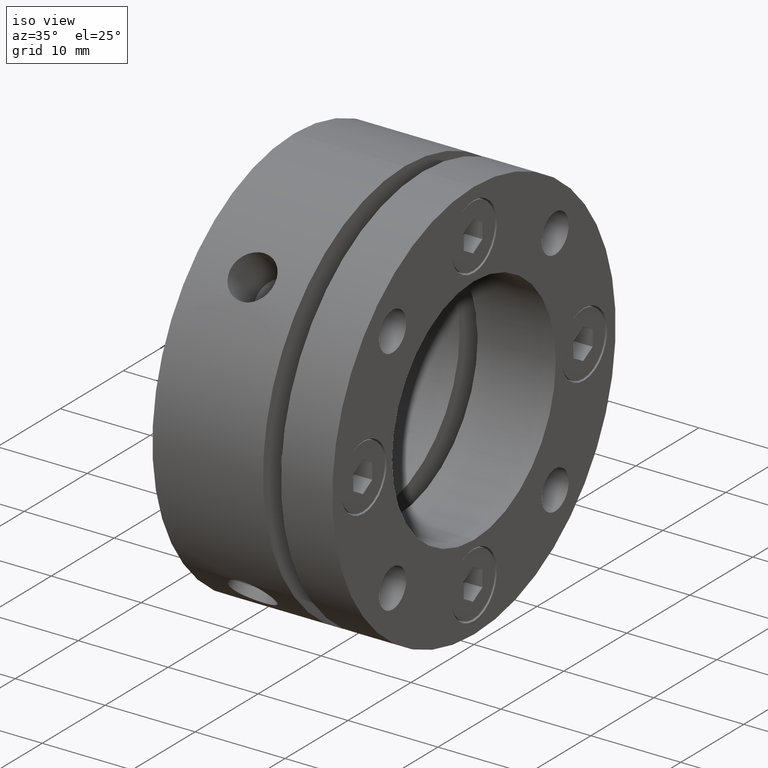
[diagram: clean part render]
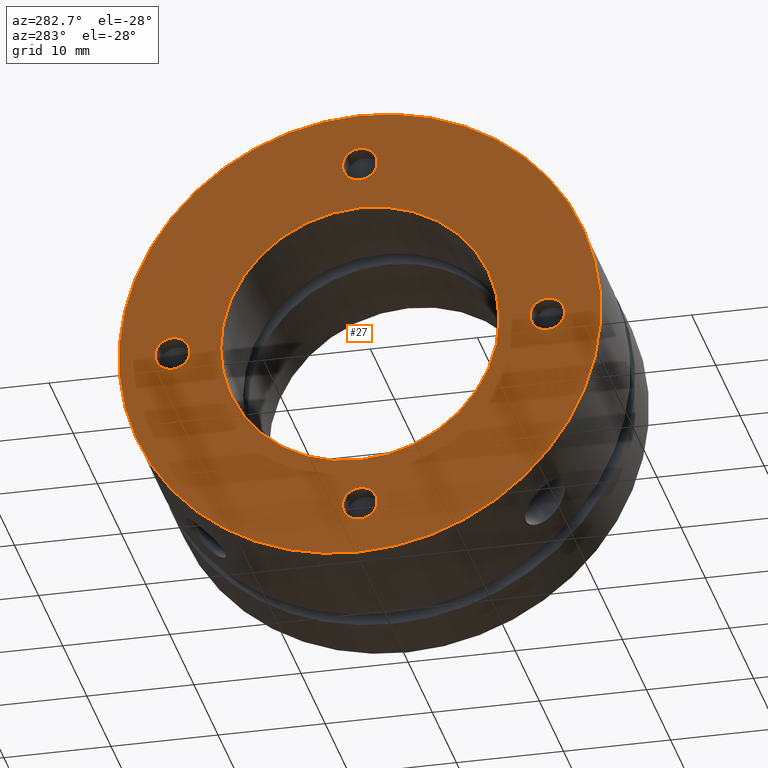
[diagram: tour spotlight — one face highlighted and labeled with its STEP entity id]
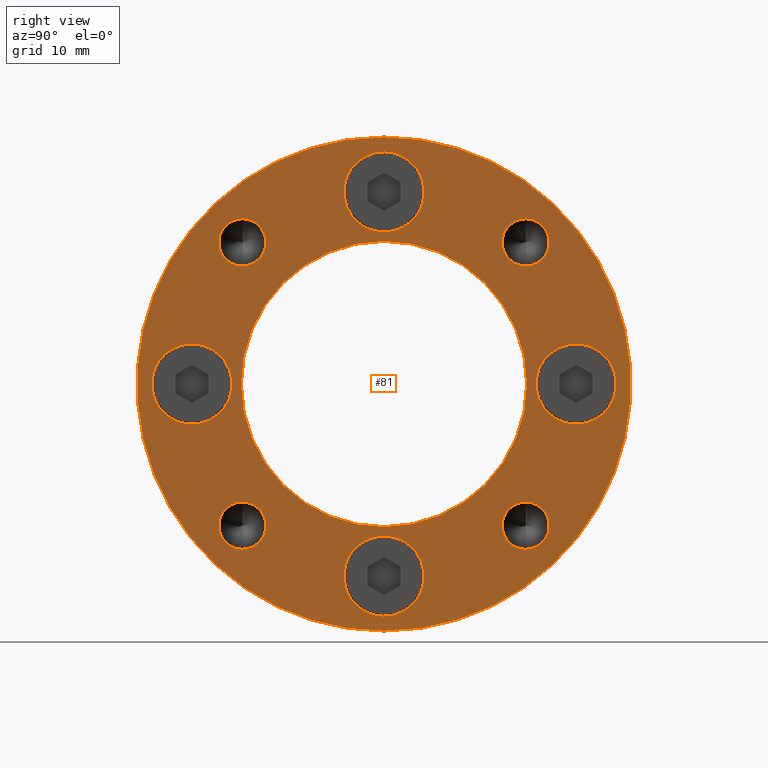
[diagram: tour spotlight — one face highlighted and labeled with its STEP entity id]
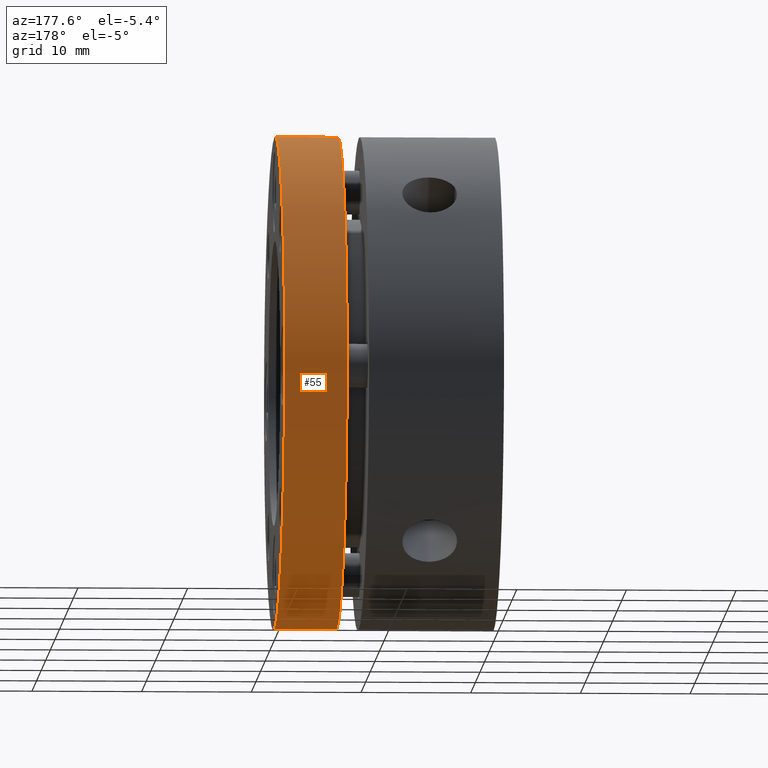
[diagram: tour spotlight — one face highlighted and labeled with its STEP entity id]
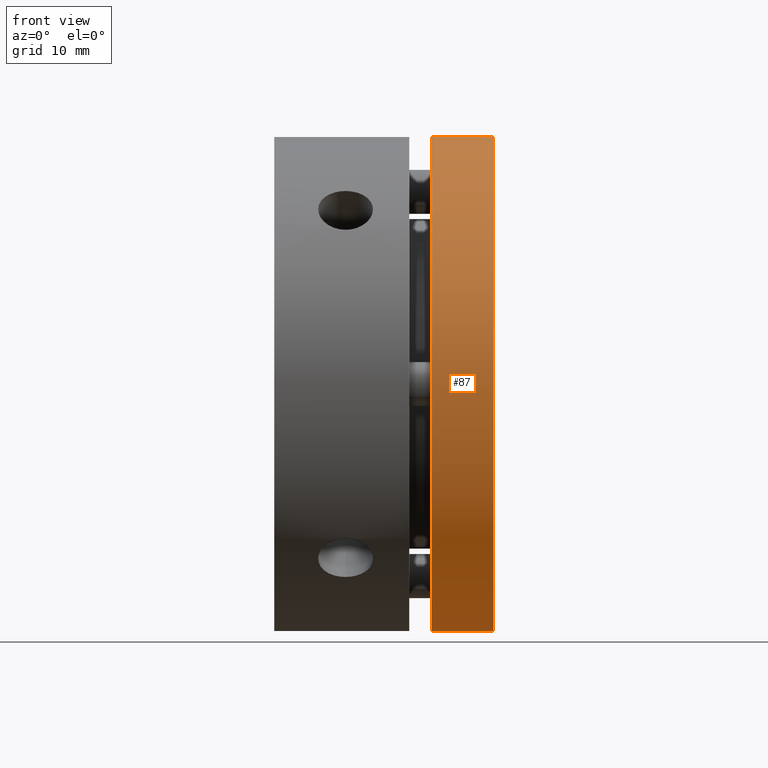
[diagram: tour spotlight — one face highlighted and labeled with its STEP entity id]
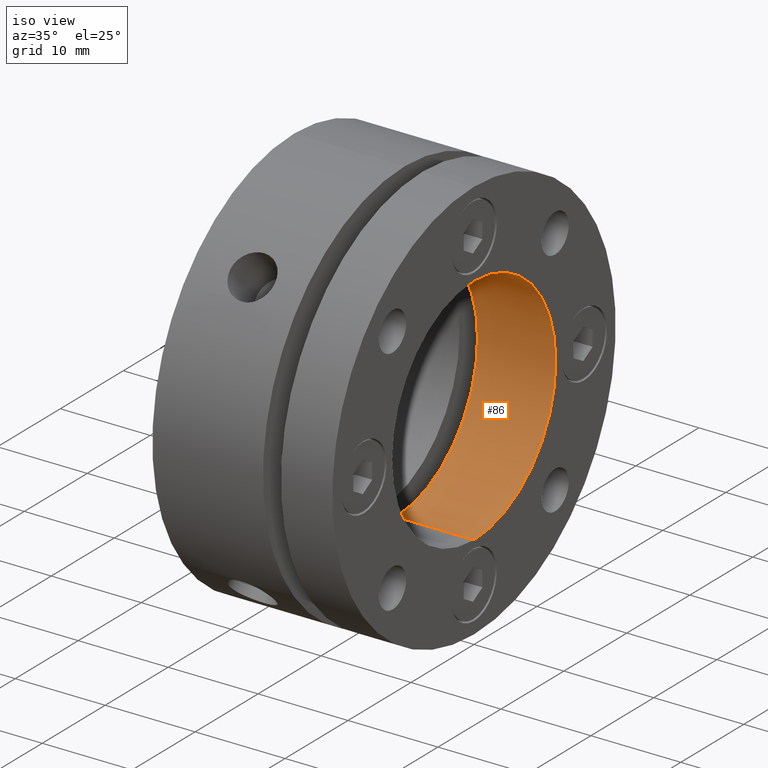
[diagram: tour spotlight — one face highlighted and labeled with its STEP entity id]
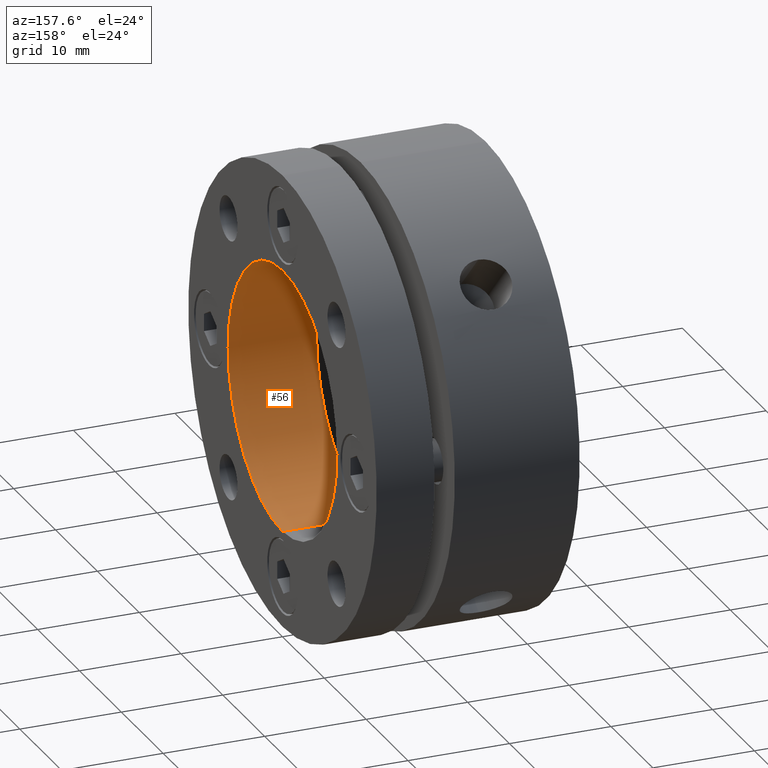
[diagram: tour spotlight — one face highlighted and labeled with its STEP entity id]
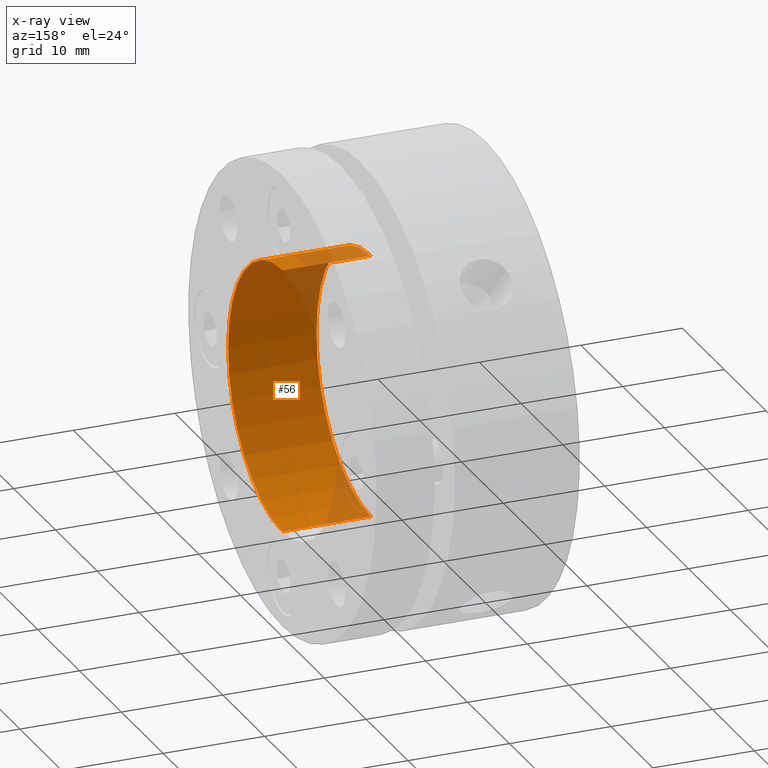
[diagram: x-ray of the same camera — body ghosted, this tour face saturated]
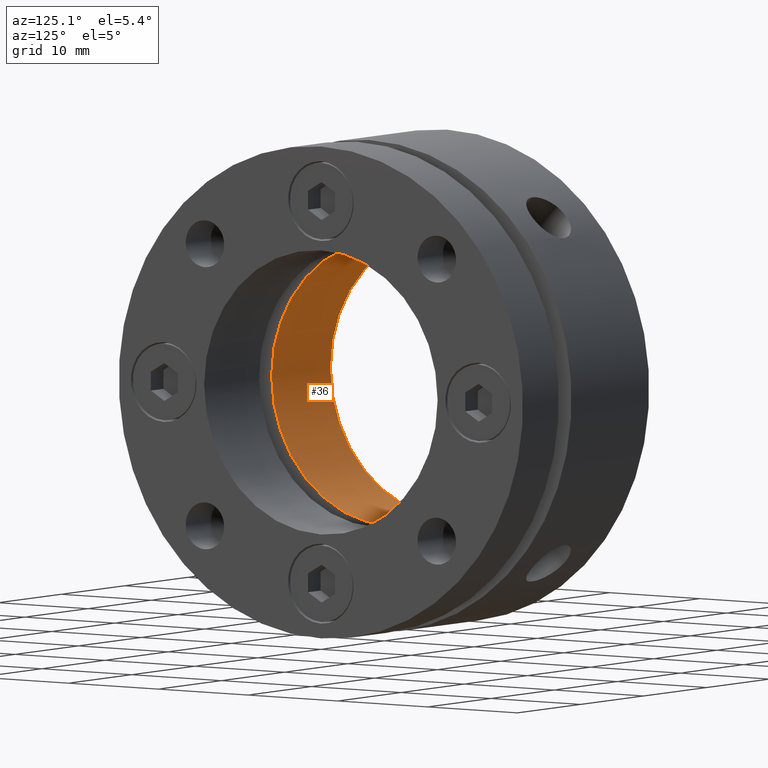
[diagram: tour spotlight — one face highlighted and labeled with its STEP entity id]
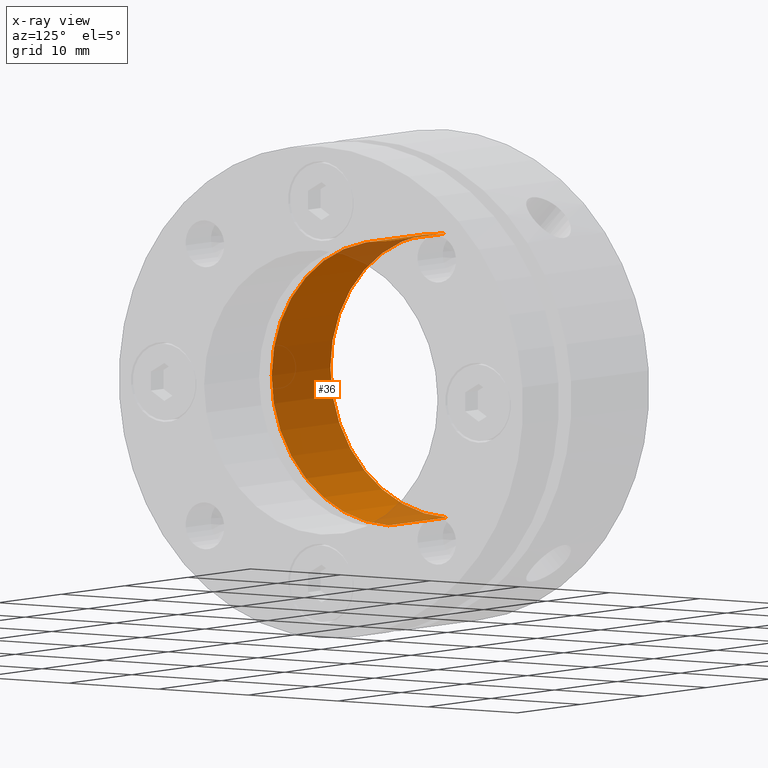
[diagram: x-ray of the same camera — body ghosted, this tour face saturated]
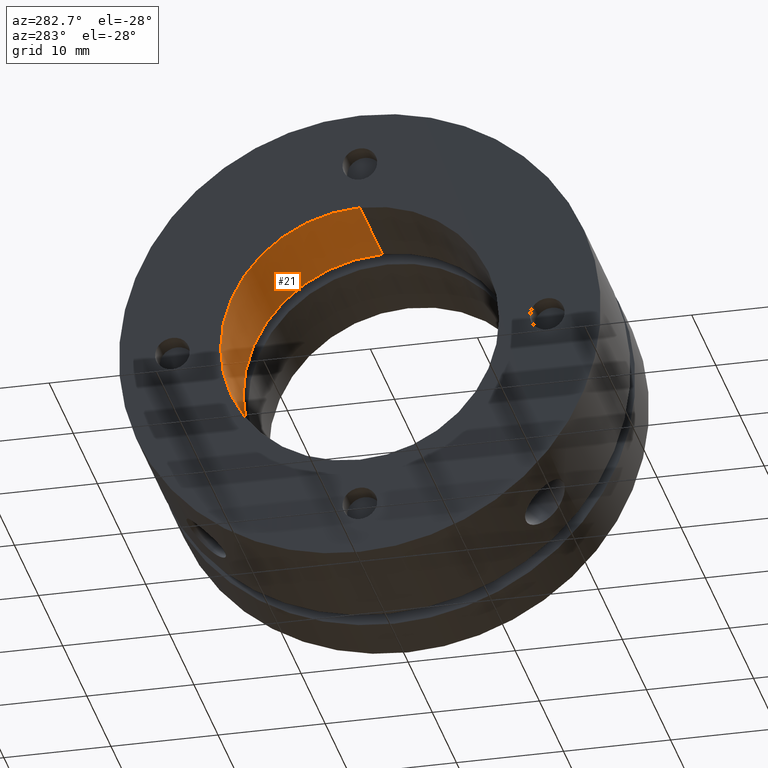
[diagram: tour spotlight — one face highlighted and labeled with its STEP entity id]
A machine part: a face-by-face anatomy tour. The part has 142 B-rep faces; the first image is the clean iso view, then the 8 largest visible faces are spotlighted one at a time (largest first), each with its STEP entity span.

Face 1 — auxiliary view, entity #27. In plain terms, the highlighted planar face has unit normal (-1, 0, 0).
Definition (entity closure, byte-faithful):
#27 = ADVANCED_FACE ( 'NONE', ( #2372, #2380, #2376, #2374, #2378, #2381 ), #189, .T. ) ;
#187 = DIRECTION ( 'NONE',  ( -1.000000000000000000, 0.0000000000000000000, 0.0000000000000000000 ) ) ;
#189 = PLANE ( 'NONE',  #915 ) ;
#190 = CARTESIAN_POINT ( 'NONE',  ( -3.763670999999999700E-015, 17.75000000000000400, 0.0000000000000000000 ) ) ;
#191 = DIRECTION ( 'NONE',  ( 0.0000000000000000000, 0.0000000000000000000, 1.000000000000000000 ) ) ;
#463 = CARTESIAN_POINT ( 'NONE',  ( -3.469446951953614200E-015, 0.0000000000000000000, 19.12100000000000600 ) ) ;
#467 = CARTESIAN_POINT ( 'NONE',  ( -3.469446951953614200E-015, 1.985152461417858200E-016, 15.87900000000000500 ) ) ;
#471 = CARTESIAN_POINT ( 'NONE',  ( -3.469446951953614200E-015, 1.592040838891559300E-015, 13.00000000000000200 ) ) ;
#475 = CARTESIAN_POINT ( 'NONE',  ( -3.469446951953614200E-015, 0.0000000000000000000, -13.00000000000000200 ) ) ;
#492 = CARTESIAN_POINT ( 'NONE',  ( -5.204170427930421300E-015, 0.0000000000000000000, -22.50000000000000000 ) ) ;
#494 = CARTESIAN_POINT ( 'NONE',  ( -5.204170427930421300E-015, 2.755455298081544800E-015, 22.50000000000000000 ) ) ;
#509 = CARTESIAN_POINT ( 'NONE',  ( -3.469446951953614200E-015, -17.50000000000000400, 1.621000000000001100 ) ) ;
#513 = CARTESIAN_POINT ( 'NONE',  ( -3.469446951953614200E-015, -2.143131999999999800E-015, -15.87900000000000500 ) ) ;
#517 = CARTESIAN_POINT ( 'NONE',  ( -3.469446951953614200E-015, -1.944616753858214000E-015, -19.12100000000000600 ) ) ;
#520 = CARTESIAN_POINT ( 'NONE',  ( -3.469446951953614200E-015, -17.50000000000000400, -1.620999999999998900 ) ) ;
#523 = CARTESIAN_POINT ( 'NONE',  ( -3.469446951953614200E-015, 17.50000000000000400, -1.621000000000003300 ) ) ;
#525 = CARTESIAN_POINT ( 'NONE',  ( -3.469446951953614200E-015, 17.50000000000000400, 1.620999999999996900 ) ) ;
#915 = AXIS2_PLACEMENT_3D ( 'NONE', #190, #187, #191 ) ;
#1011 = AXIS2_PLACEMENT_3D ( 'NONE', #1031, #1032, #1033 ) ;
#1014 = AXIS2_PLACEMENT_3D ( 'NONE', #1041, #1042, #1043 ) ;
#1031 = CARTESIAN_POINT ( 'NONE',  ( -3.469446951953614200E-015, 17.50000000000000400, -3.214698000000000300E-015 ) ) ;
#1032 = DIRECTION ( 'NONE',  ( 1.000000000000000000, -0.0000000000000000000, -0.0000000000000000000 ) ) ;
#1033 = DIRECTION ( 'NONE',  ( 0.0000000000000000000, 0.0000000000000000000, 1.000000000000000000 ) ) ;
#1041 = CARTESIAN_POINT ( 'NONE',  ( -3.469446951953614200E-015, -2.143131999999999800E-015, -17.50000000000000400 ) ) ;
#1042 = DIRECTION ( 'NONE',  ( 1.000000000000000000, -0.0000000000000000000, -0.0000000000000000000 ) ) ;
#1043 = DIRECTION ( 'NONE',  ( 0.0000000000000000000, 0.0000000000000000000, 1.000000000000000000 ) ) ;
#1137 = CARTESIAN_POINT ( 'NONE',  ( -3.469446951953614200E-015, 0.0000000000000000000, 0.0000000000000000000 ) ) ;
#1138 = DIRECTION ( 'NONE',  ( 1.000000000000000000, 0.0000000000000000000, 0.0000000000000000000 ) ) ;
#1139 = DIRECTION ( 'NONE',  ( 0.0000000000000000000, 0.0000000000000000000, -1.000000000000000000 ) ) ;
#1175 = CARTESIAN_POINT ( 'NONE',  ( -3.469446951953614200E-015, -2.143131999999999800E-015, -17.50000000000000400 ) ) ;
#1176 = DIRECTION ( 'NONE',  ( 1.000000000000000000, -0.0000000000000000000, -0.0000000000000000000 ) ) ;
#1177 = DIRECTION ( 'NONE',  ( 0.0000000000000000000, 0.0000000000000000000, 1.000000000000000000 ) ) ;
#1189 = CARTESIAN_POINT ( 'NONE',  ( -3.469446951953614200E-015, -17.50000000000000400, 1.071565999999999900E-015 ) ) ;
#1190 = DIRECTION ( 'NONE',  ( 1.000000000000000000, -0.0000000000000000000, -0.0000000000000000000 ) ) ;
#1191 = DIRECTION ( 'NONE',  ( 0.0000000000000000000, 0.0000000000000000000, 1.000000000000000000 ) ) ;
#1199 = CARTESIAN_POINT ( 'NONE',  ( -3.469446951953614200E-015, 0.0000000000000000000, 17.50000000000000400 ) ) ;
#1200 = DIRECTION ( 'NONE',  ( 1.000000000000000000, -0.0000000000000000000, -0.0000000000000000000 ) ) ;
#1201 = DIRECTION ( 'NONE',  ( 0.0000000000000000000, 0.0000000000000000000, 1.000000000000000000 ) ) ;
#1399 = CARTESIAN_POINT ( 'NONE',  ( -5.204170427930421300E-015, 0.0000000000000000000, 0.0000000000000000000 ) ) ;
#1400 = DIRECTION ( 'NONE',  ( 1.000000000000000000, 0.0000000000000000000, 0.0000000000000000000 ) ) ;
#1401 = DIRECTION ( 'NONE',  ( 0.0000000000000000000, 0.0000000000000000000, -1.000000000000000000 ) ) ;
#1485 = CARTESIAN_POINT ( 'NONE',  ( -3.469446951953614200E-015, -17.50000000000000400, 1.071565999999999900E-015 ) ) ;
#1486 = DIRECTION ( 'NONE',  ( 1.000000000000000000, -0.0000000000000000000, -0.0000000000000000000 ) ) ;
#1487 = DIRECTION ( 'NONE',  ( 0.0000000000000000000, 0.0000000000000000000, 1.000000000000000000 ) ) ;
#1488 = CARTESIAN_POINT ( 'NONE',  ( -3.469446951953614200E-015, 0.0000000000000000000, 17.50000000000000400 ) ) ;
#1489 = DIRECTION ( 'NONE',  ( 1.000000000000000000, -0.0000000000000000000, -0.0000000000000000000 ) ) ;
#1490 = DIRECTION ( 'NONE',  ( 0.0000000000000000000, 0.0000000000000000000, 1.000000000000000000 ) ) ;
#1492 = CARTESIAN_POINT ( 'NONE',  ( -3.469446951953614200E-015, 0.0000000000000000000, 0.0000000000000000000 ) ) ;
#1493 = DIRECTION ( 'NONE',  ( 1.000000000000000000, 0.0000000000000000000, 0.0000000000000000000 ) ) ;
#1494 = DIRECTION ( 'NONE',  ( 0.0000000000000000000, 0.0000000000000000000, -1.000000000000000000 ) ) ;
#1568 = CARTESIAN_POINT ( 'NONE',  ( -5.204170427930421300E-015, 0.0000000000000000000, 0.0000000000000000000 ) ) ;
#1569 = DIRECTION ( 'NONE',  ( 1.000000000000000000, 0.0000000000000000000, 0.0000000000000000000 ) ) ;
#1570 = DIRECTION ( 'NONE',  ( 0.0000000000000000000, 0.0000000000000000000, -1.000000000000000000 ) ) ;
#1725 = CARTESIAN_POINT ( 'NONE',  ( -3.469446951953614200E-015, 17.50000000000000400, -3.214698000000000300E-015 ) ) ;
#1726 = DIRECTION ( 'NONE',  ( 1.000000000000000000, -0.0000000000000000000, -0.0000000000000000000 ) ) ;
#1727 = DIRECTION ( 'NONE',  ( 0.0000000000000000000, 0.0000000000000000000, 1.000000000000000000 ) ) ;
#1933 = EDGE_LOOP ( 'NONE', ( #2325, #1980 ) ) ;
#1938 = ORIENTED_EDGE ( 'NONE', *, *, #3334, .T. ) ;
#1940 = EDGE_LOOP ( 'NONE', ( #1966, #1938 ) ) ;
#1944 = EDGE_LOOP ( 'NONE', ( #2319, #2320 ) ) ;
#1951 = EDGE_LOOP ( 'NONE', ( #2323, #2324 ) ) ;
#1961 = EDGE_LOOP ( 'NONE', ( #2321, #2322 ) ) ;
#1965 = EDGE_LOOP ( 'NONE', ( #1982, #1994 ) ) ;
#1966 = ORIENTED_EDGE ( 'NONE', *, *, #3508, .T. ) ;
#1980 = ORIENTED_EDGE ( 'NONE', *, *, #3337, .T. ) ;
#1982 = ORIENTED_EDGE ( 'NONE', *, *, #3428, .F. ) ;
#1994 = ORIENTED_EDGE ( 'NONE', *, *, #3445, .F. ) ;
#1999 = VERTEX_POINT ( 'NONE', #467 ) ;
#2000 = VERTEX_POINT ( 'NONE', #463 ) ;
#2005 = VERTEX_POINT ( 'NONE', #471 ) ;
#2009 = VERTEX_POINT ( 'NONE', #475 ) ;
#2026 = VERTEX_POINT ( 'NONE', #492 ) ;
#2028 = VERTEX_POINT ( 'NONE', #494 ) ;
#2319 = ORIENTED_EDGE ( 'NONE', *, *, #3441, .T. ) ;
#2320 = ORIENTED_EDGE ( 'NONE', *, *, #3371, .T. ) ;
#2321 = ORIENTED_EDGE ( 'NONE', *, *, #3396, .T. ) ;
#2322 = ORIENTED_EDGE ( 'NONE', *, *, #3440, .T. ) ;
#2323 = ORIENTED_EDGE ( 'NONE', *, *, #3392, .T. ) ;
#2324 = ORIENTED_EDGE ( 'NONE', *, *, #3439, .T. ) ;
#2325 = ORIENTED_EDGE ( 'NONE', *, *, #3387, .T. ) ;
#2372 = FACE_BOUND ( 'NONE', #1944, .T. ) ;
#2374 = FACE_BOUND ( 'NONE', #1933, .T. ) ;
#2376 = FACE_BOUND ( 'NONE', #1951, .T. ) ;
#2378 = FACE_BOUND ( 'NONE', #1940, .T. ) ;
#2380 = FACE_BOUND ( 'NONE', #1961, .T. ) ;
#2381 = FACE_OUTER_BOUND ( 'NONE', #1965, .T. ) ;
#2572 = CIRCLE ( 'NONE', #1011, 1.621000000000000000 ) ;
#2576 = CIRCLE ( 'NONE', #1014, 1.621000000000000900 ) ;
#2614 = CIRCLE ( 'NONE', #2662, 13.00000000000000200 ) ;
#2662 = AXIS2_PLACEMENT_3D ( 'NONE', #1137, #1138, #1139 ) ;
#2668 = AXIS2_PLACEMENT_3D ( 'NONE', #1175, #1176, #1177 ) ;
#2671 = AXIS2_PLACEMENT_3D ( 'NONE', #1189, #1190, #1191 ) ;
#2673 = AXIS2_PLACEMENT_3D ( 'NONE', #1199, #1200, #1201 ) ;
#2680 = AXIS2_PLACEMENT_3D ( 'NONE', #1399, #1400, #1401 ) ;
#2684 = AXIS2_PLACEMENT_3D ( 'NONE', #1485, #1486, #1487 ) ;
#2685 = AXIS2_PLACEMENT_3D ( 'NONE', #1488, #1489, #1490 ) ;
#2686 = AXIS2_PLACEMENT_3D ( 'NONE', #1492, #1493, #1494 ) ;
#2688 = AXIS2_PLACEMENT_3D ( 'NONE', #1568, #1569, #1570 ) ;
#2718 = AXIS2_PLACEMENT_3D ( 'NONE', #1725, #1726, #1727 ) ;
#2839 = CIRCLE ( 'NONE', #2668, 1.621000000000000900 ) ;
#2848 = CIRCLE ( 'NONE', #2671, 1.621000000000000000 ) ;
#2852 = CIRCLE ( 'NONE', #2673, 1.621000000000000900 ) ;
#2904 = CIRCLE ( 'NONE', #2680, 22.50000000000000000 ) ;
#2917 = CIRCLE ( 'NONE', #2685, 1.621000000000000900 ) ;
#2919 = CIRCLE ( 'NONE', #2684, 1.621000000000000000 ) ;
#2921 = CIRCLE ( 'NONE', #2686, 13.00000000000000200 ) ;
#2923 = CIRCLE ( 'NONE', #2688, 22.50000000000000000 ) ;
#2949 = VERTEX_POINT ( 'NONE', #513 ) ;
#2968 = VERTEX_POINT ( 'NONE', #509 ) ;
#3006 = VERTEX_POINT ( 'NONE', #517 ) ;
#3021 = VERTEX_POINT ( 'NONE', #520 ) ;
#3028 = CIRCLE ( 'NONE', #2718, 1.621000000000000000 ) ;
#3031 = VERTEX_POINT ( 'NONE', #523 ) ;
#3044 = VERTEX_POINT ( 'NONE', #525 ) ;
#3334 = EDGE_CURVE ( 'NONE', #3031, #3044, #2572, .T. ) ;
#3337 = EDGE_CURVE ( 'NONE', #3006, #2949, #2576, .T. ) ;
#3371 = EDGE_CURVE ( 'NONE', #2005, #2009, #2614, .T. ) ;
#3387 = EDGE_CURVE ( 'NONE', #2949, #3006, #2839, .T. ) ;
#3392 = EDGE_CURVE ( 'NONE', #2968, #3021, #2848, .T. ) ;
#3396 = EDGE_CURVE ( 'NONE', #2000, #1999, #2852, .T. ) ;
#3428 = EDGE_CURVE ( 'NONE', #2026, #2028, #2904, .T. ) ;
#3439 = EDGE_CURVE ( 'NONE', #3021, #2968, #2919, .T. ) ;
#3440 = EDGE_CURVE ( 'NONE', #1999, #2000, #2917, .T. ) ;
#3441 = EDGE_CURVE ( 'NONE', #2009, #2005, #2921, .T. ) ;
#3445 = EDGE_CURVE ( 'NONE', #2028, #2026, #2923, .T. ) ;
#3508 = EDGE_CURVE ( 'NONE', #3044, #3031, #3028, .T. ) ;

Face 2 — right view, entity #81. In plain terms, the highlighted planar face has unit normal (1, 0, 0).
Definition (entity closure, byte-faithful):
#81 = ADVANCED_FACE ( 'NONE', ( #2486, #2494, #2490, #2488, #2492, #2495, #2496, #2497, #2498, #2499 ), #354, .T. ) ;
#352 = DIRECTION ( 'NONE',  ( 1.000000000000000000, -0.0000000000000000000, 0.0000000000000000000 ) ) ;
#354 = PLANE ( 'NONE',  #969 ) ;
#356 = CARTESIAN_POINT ( 'NONE',  ( 19.99999999999999600, 17.75000000000000400, 0.0000000000000000000 ) ) ;
#358 = DIRECTION ( 'NONE',  ( 0.0000000000000000000, 0.0000000000000000000, -1.000000000000000000 ) ) ;
#420 = CARTESIAN_POINT ( 'NONE',  ( 19.99999999999999600, -17.50000000000000400, -3.649999999999999000 ) ) ;
#422 = CARTESIAN_POINT ( 'NONE',  ( 19.99999999999999600, -17.50000000000000400, 3.650000000000000800 ) ) ;
#425 = CARTESIAN_POINT ( 'NONE',  ( 19.99999999999999600, 0.0000000000000000000, 13.85000000000000500 ) ) ;
#426 = CARTESIAN_POINT ( 'NONE',  ( 19.99999999999999600, 4.469960816887838400E-016, 21.15000000000000600 ) ) ;
#431 = CARTESIAN_POINT ( 'NONE',  ( 19.99999999999999600, -2.143131999999999800E-015, -21.15000000000000600 ) ) ;
#432 = CARTESIAN_POINT ( 'NONE',  ( 19.99999999999999600, -1.696135918311216000E-015, -13.85000000000000500 ) ) ;
#435 = CARTESIAN_POINT ( 'NONE',  ( 19.99999999999999600, 17.50000000000000400, -3.650000000000003000 ) ) ;
#436 = CARTESIAN_POINT ( 'NONE',  ( 19.99999999999999600, 17.50000000000000400, 3.649999999999996800 ) ) ;
#439 = CARTESIAN_POINT ( 'NONE',  ( 19.99999999999999600, -12.90469875665449200, 10.75469875665449300 ) ) ;
#440 = CARTESIAN_POINT ( 'NONE',  ( 19.99999999999999600, -12.90469875665449200, 15.05469875665449400 ) ) ;
#443 = CARTESIAN_POINT ( 'NONE',  ( 19.99999999999999600, -12.90469875665449400, -15.05469875665449000 ) ) ;
#444 = CARTESIAN_POINT ( 'NONE',  ( 19.99999999999999600, -12.90469875665449400, -10.75469875665449300 ) ) ;
#447 = CARTESIAN_POINT ( 'NONE',  ( 19.99999999999999600, 12.90469875665449200, -15.05469875665449400 ) ) ;
#448 = CARTESIAN_POINT ( 'NONE',  ( 19.99999999999999600, 12.90469875665449200, -10.75469875665449300 ) ) ;
#451 = CARTESIAN_POINT ( 'NONE',  ( 19.99999999999999600, 12.90469875665449500, 10.75469875665449000 ) ) ;
#452 = CARTESIAN_POINT ( 'NONE',  ( 19.99999999999999600, 12.90469875665449500, 15.05469875665449000 ) ) ;
#461 = CARTESIAN_POINT ( 'NONE',  ( 19.99999999999999600, 0.0000000000000000000, -13.00000000000000200 ) ) ;
#464 = CARTESIAN_POINT ( 'NONE',  ( 19.99999999999999600, 1.592040838891559300E-015, 13.00000000000000200 ) ) ;
#612 = VERTEX_POINT ( 'NONE', #425 ) ;
#613 = VERTEX_POINT ( 'NONE', #426 ) ;
#616 = VERTEX_POINT ( 'NONE', #420 ) ;
#617 = VERTEX_POINT ( 'NONE', #422 ) ;
#620 = VERTEX_POINT ( 'NONE', #431 ) ;
#621 = VERTEX_POINT ( 'NONE', #432 ) ;
#624 = VERTEX_POINT ( 'NONE', #435 ) ;
#625 = VERTEX_POINT ( 'NONE', #436 ) ;
#628 = VERTEX_POINT ( 'NONE', #439 ) ;
#629 = VERTEX_POINT ( 'NONE', #440 ) ;
#632 = VERTEX_POINT ( 'NONE', #443 ) ;
#633 = VERTEX_POINT ( 'NONE', #444 ) ;
#636 = VERTEX_POINT ( 'NONE', #447 ) ;
#637 = VERTEX_POINT ( 'NONE', #448 ) ;
#640 = VERTEX_POINT ( 'NONE', #451 ) ;
#641 = VERTEX_POINT ( 'NONE', #452 ) ;
#670 = EDGE_LOOP ( 'NONE', ( #2139, #2140 ) ) ;
#708 = EDGE_LOOP ( 'NONE', ( #2149, #2150 ) ) ;
#718 = EDGE_LOOP ( 'NONE', ( #2141, #2142 ) ) ;
#719 = EDGE_LOOP ( 'NONE', ( #2147, #2148 ) ) ;
#720 = EDGE_LOOP ( 'NONE', ( #2145, #2146 ) ) ;
#721 = EDGE_LOOP ( 'NONE', ( #2143, #2144 ) ) ;
#722 = EDGE_LOOP ( 'NONE', ( #2151, #2152 ) ) ;
#723 = EDGE_LOOP ( 'NONE', ( #2153, #2154 ) ) ;
#724 = EDGE_LOOP ( 'NONE', ( #2155, #2156 ) ) ;
#725 = EDGE_LOOP ( 'NONE', ( #2157, #2158 ) ) ;
#969 = AXIS2_PLACEMENT_3D ( 'NONE', #356, #352, #358 ) ;
#1058 = CARTESIAN_POINT ( 'NONE',  ( 19.99999999999999600, -17.50000000000000400, 1.071565999999999900E-015 ) ) ;
#1059 = DIRECTION ( 'NONE',  ( -1.000000000000000000, -0.0000000000000000000, -0.0000000000000000000 ) ) ;
#1060 = DIRECTION ( 'NONE',  ( 0.0000000000000000000, 0.0000000000000000000, -1.000000000000000000 ) ) ;
#1067 = CARTESIAN_POINT ( 'NONE',  ( 19.99999999999999300, 0.0000000000000000000, 0.0000000000000000000 ) ) ;
#1068 = DIRECTION ( 'NONE',  ( -1.000000000000000000, -0.0000000000000000000, -0.0000000000000000000 ) ) ;
#1069 = DIRECTION ( 'NONE',  ( 0.0000000000000000000, 0.0000000000000000000, -1.000000000000000000 ) ) ;
#1070 = CARTESIAN_POINT ( 'NONE',  ( 19.99999999999999600, 0.0000000000000000000, 17.50000000000000400 ) ) ;
#1071 = DIRECTION ( 'NONE',  ( -1.000000000000000000, -0.0000000000000000000, -0.0000000000000000000 ) ) ;
#1072 = DIRECTION ( 'NONE',  ( 0.0000000000000000000, 0.0000000000000000000, -1.000000000000000000 ) ) ;
#1080 = CARTESIAN_POINT ( 'NONE',  ( 19.99999999999999600, -2.143131999999999800E-015, -17.50000000000000400 ) ) ;
#1081 = DIRECTION ( 'NONE',  ( -1.000000000000000000, -0.0000000000000000000, -0.0000000000000000000 ) ) ;
#1082 = DIRECTION ( 'NONE',  ( 0.0000000000000000000, 0.0000000000000000000, -1.000000000000000000 ) ) ;
#1090 = CARTESIAN_POINT ( 'NONE',  ( 19.99999999999999600, 12.90469875665449500, 12.90469875665449000 ) ) ;
#1091 = DIRECTION ( 'NONE',  ( -1.000000000000000000, -0.0000000000000000000, -0.0000000000000000000 ) ) ;
#1092 = DIRECTION ( 'NONE',  ( 0.0000000000000000000, 0.0000000000000000000, -1.000000000000000000 ) ) ;
#1093 = CARTESIAN_POINT ( 'NONE',  ( 19.99999999999999600, 12.90469875665449200, -12.90469875665449400 ) ) ;
#1094 = DIRECTION ( 'NONE',  ( -1.000000000000000000, -0.0000000000000000000, -0.0000000000000000000 ) ) ;
#1095 = DIRECTION ( 'NONE',  ( 0.0000000000000000000, 0.0000000000000000000, -1.000000000000000000 ) ) ;
#1096 = CARTESIAN_POINT ( 'NONE',  ( 19.99999999999999600, -12.90469875665449400, -12.90469875665449200 ) ) ;
#1097 = DIRECTION ( 'NONE',  ( -1.000000000000000000, -0.0000000000000000000, -0.0000000000000000000 ) ) ;
#1098 = DIRECTION ( 'NONE',  ( 0.0000000000000000000, 0.0000000000000000000, -1.000000000000000000 ) ) ;
#1099 = CARTESIAN_POINT ( 'NONE',  ( 19.99999999999999600, -12.90469875665449200, 12.90469875665449400 ) ) ;
#1100 = DIRECTION ( 'NONE',  ( -1.000000000000000000, -0.0000000000000000000, -0.0000000000000000000 ) ) ;
#1101 = DIRECTION ( 'NONE',  ( 0.0000000000000000000, 0.0000000000000000000, -1.000000000000000000 ) ) ;
#1105 = CARTESIAN_POINT ( 'NONE',  ( 19.99999999999999600, 17.50000000000000400, -3.214698000000000300E-015 ) ) ;
#1106 = DIRECTION ( 'NONE',  ( -1.000000000000000000, -0.0000000000000000000, -0.0000000000000000000 ) ) ;
#1107 = DIRECTION ( 'NONE',  ( 0.0000000000000000000, 0.0000000000000000000, -1.000000000000000000 ) ) ;
#1129 = CARTESIAN_POINT ( 'NONE',  ( 19.99999999999999600, 0.0000000000000000000, 0.0000000000000000000 ) ) ;
#1130 = DIRECTION ( 'NONE',  ( -1.000000000000000000, -0.0000000000000000000, -0.0000000000000000000 ) ) ;
#1131 = DIRECTION ( 'NONE',  ( 0.0000000000000000000, 0.0000000000000000000, -1.000000000000000000 ) ) ;
#1579 = CARTESIAN_POINT ( 'NONE',  ( 19.99999999999999600, -17.50000000000000400, 1.071565999999999900E-015 ) ) ;
#1580 = DIRECTION ( 'NONE',  ( -1.000000000000000000, -0.0000000000000000000, -0.0000000000000000000 ) ) ;
#1581 = DIRECTION ( 'NONE',  ( 0.0000000000000000000, 0.0000000000000000000, -1.000000000000000000 ) ) ;
#1584 = CARTESIAN_POINT ( 'NONE',  ( 19.99999999999999600, 0.0000000000000000000, 17.50000000000000400 ) ) ;
#1585 = DIRECTION ( 'NONE',  ( -1.000000000000000000, -0.0000000000000000000, -0.0000000000000000000 ) ) ;
#1586 = DIRECTION ( 'NONE',  ( 0.0000000000000000000, 0.0000000000000000000, -1.000000000000000000 ) ) ;
#1593 = CARTESIAN_POINT ( 'NONE',  ( 19.99999999999999600, -2.143131999999999800E-015, -17.50000000000000400 ) ) ;
#1594 = DIRECTION ( 'NONE',  ( -1.000000000000000000, -0.0000000000000000000, -0.0000000000000000000 ) ) ;
#1595 = DIRECTION ( 'NONE',  ( 0.0000000000000000000, 0.0000000000000000000, -1.000000000000000000 ) ) ;
#1604 = CARTESIAN_POINT ( 'NONE',  ( 19.99999999999999600, 17.50000000000000400, -3.214698000000000300E-015 ) ) ;
#1605 = DIRECTION ( 'NONE',  ( -1.000000000000000000, -0.0000000000000000000, -0.0000000000000000000 ) ) ;
#1606 = DIRECTION ( 'NONE',  ( 0.0000000000000000000, 0.0000000000000000000, -1.000000000000000000 ) ) ;
#1618 = CARTESIAN_POINT ( 'NONE',  ( 19.99999999999999600, -12.90469875665449200, 12.90469875665449400 ) ) ;
#1619 = DIRECTION ( 'NONE',  ( -1.000000000000000000, -0.0000000000000000000, -0.0000000000000000000 ) ) ;
#1620 = DIRECTION ( 'NONE',  ( 0.0000000000000000000, 0.0000000000000000000, -1.000000000000000000 ) ) ;
#1628 = CARTESIAN_POINT ( 'NONE',  ( 19.99999999999999300, 0.0000000000000000000, 0.0000000000000000000 ) ) ;
#1629 = DIRECTION ( 'NONE',  ( -1.000000000000000000, -0.0000000000000000000, -0.0000000000000000000 ) ) ;
#1630 = DIRECTION ( 'NONE',  ( 0.0000000000000000000, 0.0000000000000000000, -1.000000000000000000 ) ) ;
#1632 = CARTESIAN_POINT ( 'NONE',  ( 19.99999999999999600, -12.90469875665449400, -12.90469875665449200 ) ) ;
#1633 = DIRECTION ( 'NONE',  ( -1.000000000000000000, -0.0000000000000000000, -0.0000000000000000000 ) ) ;
#1634 = DIRECTION ( 'NONE',  ( 0.0000000000000000000, 0.0000000000000000000, -1.000000000000000000 ) ) ;
#1635 = CARTESIAN_POINT ( 'NONE',  ( 19.99999999999999600, 0.0000000000000000000, 0.0000000000000000000 ) ) ;
#1636 = DIRECTION ( 'NONE',  ( -1.000000000000000000, -0.0000000000000000000, -0.0000000000000000000 ) ) ;
#1637 = DIRECTION ( 'NONE',  ( 0.0000000000000000000, 0.0000000000000000000, -1.000000000000000000 ) ) ;
#1651 = CARTESIAN_POINT ( 'NONE',  ( 19.99999999999999600, 12.90469875665449200, -12.90469875665449400 ) ) ;
#1652 = DIRECTION ( 'NONE',  ( -1.000000000000000000, -0.0000000000000000000, -0.0000000000000000000 ) ) ;
#1653 = DIRECTION ( 'NONE',  ( 0.0000000000000000000, 0.0000000000000000000, -1.000000000000000000 ) ) ;
#1662 = CARTESIAN_POINT ( 'NONE',  ( 19.99999999999999600, 12.90469875665449500, 12.90469875665449000 ) ) ;
#1663 = DIRECTION ( 'NONE',  ( -1.000000000000000000, -0.0000000000000000000, -0.0000000000000000000 ) ) ;
#1664 = DIRECTION ( 'NONE',  ( 0.0000000000000000000, 0.0000000000000000000, -1.000000000000000000 ) ) ;
#1795 = CARTESIAN_POINT ( 'NONE',  ( 19.99999999999999300, 0.0000000000000000000, -22.50000000000000000 ) ) ;
#1797 = CARTESIAN_POINT ( 'NONE',  ( 19.99999999999999300, 2.755455298081544800E-015, 22.50000000000000000 ) ) ;
#1995 = VERTEX_POINT ( 'NONE', #464 ) ;
#1996 = VERTEX_POINT ( 'NONE', #461 ) ;
#2139 = ORIENTED_EDGE ( 'NONE', *, *, #3473, .T. ) ;
#2140 = ORIENTED_EDGE ( 'NONE', *, *, #3368, .T. ) ;
#2141 = ORIENTED_EDGE ( 'NONE', *, *, #3452, .T. ) ;
#2142 = ORIENTED_EDGE ( 'NONE', *, *, #3348, .T. ) ;
#2143 = ORIENTED_EDGE ( 'NONE', *, *, #3450, .T. ) ;
#2144 = ORIENTED_EDGE ( 'NONE', *, *, #3344, .T. ) ;
#2145 = ORIENTED_EDGE ( 'NONE', *, *, #3455, .T. ) ;
#2146 = ORIENTED_EDGE ( 'NONE', *, *, #3351, .T. ) ;
#2147 = ORIENTED_EDGE ( 'NONE', *, *, #3460, .T. ) ;
#2148 = ORIENTED_EDGE ( 'NONE', *, *, #3359, .T. ) ;
#2149 = ORIENTED_EDGE ( 'NONE', *, *, #3465, .T. ) ;
#2150 = ORIENTED_EDGE ( 'NONE', *, *, #3357, .T. ) ;
#2151 = ORIENTED_EDGE ( 'NONE', *, *, #3471, .T. ) ;
#2152 = ORIENTED_EDGE ( 'NONE', *, *, #3356, .T. ) ;
#2153 = ORIENTED_EDGE ( 'NONE', *, *, #3478, .T. ) ;
#2154 = ORIENTED_EDGE ( 'NONE', *, *, #3355, .T. ) ;
#2155 = ORIENTED_EDGE ( 'NONE', *, *, #3482, .T. ) ;
#2156 = ORIENTED_EDGE ( 'NONE', *, *, #3354, .T. ) ;
#2157 = ORIENTED_EDGE ( 'NONE', *, *, #3347, .F. ) ;
#2158 = ORIENTED_EDGE ( 'NONE', *, *, #3469, .F. ) ;
#2486 = FACE_BOUND ( 'NONE', #670, .T. ) ;
#2488 = FACE_BOUND ( 'NONE', #720, .T. ) ;
#2490 = FACE_BOUND ( 'NONE', #721, .T. ) ;
#2492 = FACE_BOUND ( 'NONE', #719, .T. ) ;
#2494 = FACE_BOUND ( 'NONE', #718, .T. ) ;
#2495 = FACE_BOUND ( 'NONE', #708, .T. ) ;
#2496 = FACE_BOUND ( 'NONE', #722, .T. ) ;
#2497 = FACE_BOUND ( 'NONE', #723, .T. ) ;
#2498 = FACE_BOUND ( 'NONE', #724, .T. ) ;
#2499 = FACE_OUTER_BOUND ( 'NONE', #725, .T. ) ;
#2583 = CIRCLE ( 'NONE', #2639, 3.649999999999999900 ) ;
#2588 = CIRCLE ( 'NONE', #2642, 22.50000000000000000 ) ;
#2589 = CIRCLE ( 'NONE', #2643, 3.650000000000000400 ) ;
#2593 = CIRCLE ( 'NONE', #2646, 3.650000000000000400 ) ;
#2594 = CIRCLE ( 'NONE', #2649, 2.150000000000000800 ) ;
#2596 = CIRCLE ( 'NONE', #2650, 2.150000000000000800 ) ;
#2597 = CIRCLE ( 'NONE', #2651, 2.149999999999999000 ) ;
#2598 = CIRCLE ( 'NONE', #2652, 2.150000000000000800 ) ;
#2600 = CIRCLE ( 'NONE', #2654, 3.649999999999999900 ) ;
#2612 = CIRCLE ( 'NONE', #2660, 13.00000000000000200 ) ;
#2639 = AXIS2_PLACEMENT_3D ( 'NONE', #1058, #1059, #1060 ) ;
#2642 = AXIS2_PLACEMENT_3D ( 'NONE', #1067, #1068, #1069 ) ;
#2643 = AXIS2_PLACEMENT_3D ( 'NONE', #1070, #1071, #1072 ) ;
#2646 = AXIS2_PLACEMENT_3D ( 'NONE', #1080, #1081, #1082 ) ;
#2649 = AXIS2_PLACEMENT_3D ( 'NONE', #1090, #1091, #1092 ) ;
#2650 = AXIS2_PLACEMENT_3D ( 'NONE', #1093, #1094, #1095 ) ;
#2651 = AXIS2_PLACEMENT_3D ( 'NONE', #1096, #1097, #1098 ) ;
#2652 = AXIS2_PLACEMENT_3D ( 'NONE', #1099, #1100, #1101 ) ;
#2654 = AXIS2_PLACEMENT_3D ( 'NONE', #1105, #1106, #1107 ) ;
#2660 = AXIS2_PLACEMENT_3D ( 'NONE', #1129, #1130, #1131 ) ;
#2690 = AXIS2_PLACEMENT_3D ( 'NONE', #1579, #1580, #1581 ) ;
#2691 = AXIS2_PLACEMENT_3D ( 'NONE', #1584, #1585, #1586 ) ;
#2693 = AXIS2_PLACEMENT_3D ( 'NONE', #1593, #1594, #1595 ) ;
#2695 = AXIS2_PLACEMENT_3D ( 'NONE', #1604, #1605, #1606 ) ;
#2698 = AXIS2_PLACEMENT_3D ( 'NONE', #1618, #1619, #1620 ) ;
#2700 = AXIS2_PLACEMENT_3D ( 'NONE', #1628, #1629, #1630 ) ;
#2701 = AXIS2_PLACEMENT_3D ( 'NONE', #1632, #1633, #1634 ) ;
#2702 = AXIS2_PLACEMENT_3D ( 'NONE', #1635, #1636, #1637 ) ;
#2705 = AXIS2_PLACEMENT_3D ( 'NONE', #1651, #1652, #1653 ) ;
#2707 = AXIS2_PLACEMENT_3D ( 'NONE', #1662, #1663, #1664 ) ;
#2927 = CIRCLE ( 'NONE', #2690, 3.649999999999999900 ) ;
#2930 = CIRCLE ( 'NONE', #2691, 3.650000000000000400 ) ;
#2933 = CIRCLE ( 'NONE', #2693, 3.650000000000000400 ) ;
#2944 = CIRCLE ( 'NONE', #2695, 3.649999999999999900 ) ;
#2952 = CIRCLE ( 'NONE', #2698, 2.150000000000000800 ) ;
#2958 = CIRCLE ( 'NONE', #2701, 2.149999999999999000 ) ;
#2961 = CIRCLE ( 'NONE', #2700, 22.50000000000000000 ) ;
#2964 = CIRCLE ( 'NONE', #2702, 13.00000000000000200 ) ;
#2967 = CIRCLE ( 'NONE', #2705, 2.150000000000000800 ) ;
#2982 = CIRCLE ( 'NONE', #2707, 2.150000000000000800 ) ;
#3344 = EDGE_CURVE ( 'NONE', #617, #616, #2583, .T. ) ;
#3347 = EDGE_CURVE ( 'NONE', #3553, #3554, #2588, .T. ) ;
#3348 = EDGE_CURVE ( 'NONE', #613, #612, #2589, .T. ) ;
#3351 = EDGE_CURVE ( 'NONE', #621, #620, #2593, .T. ) ;
#3354 = EDGE_CURVE ( 'NONE', #641, #640, #2594, .T. ) ;
#3355 = EDGE_CURVE ( 'NONE', #637, #636, #2596, .T. ) ;
#3356 = EDGE_CURVE ( 'NONE', #633, #632, #2597, .T. ) ;
#3357 = EDGE_CURVE ( 'NONE', #629, #628, #2598, .T. ) ;
#3359 = EDGE_CURVE ( 'NONE', #625, #624, #2600, .T. ) ;
#3368 = EDGE_CURVE ( 'NONE', #1995, #1996, #2612, .T. ) ;
#3450 = EDGE_CURVE ( 'NONE', #616, #617, #2927, .T. ) ;
#3452 = EDGE_CURVE ( 'NONE', #612, #613, #2930, .T. ) ;
#3455 = EDGE_CURVE ( 'NONE', #620, #621, #2933, .T. ) ;
#3460 = EDGE_CURVE ( 'NONE', #624, #625, #2944, .T. ) ;
#3465 = EDGE_CURVE ( 'NONE', #628, #629, #2952, .T. ) ;
#3469 = EDGE_CURVE ( 'NONE', #3554, #3553, #2961, .T. ) ;
#3471 = EDGE_CURVE ( 'NONE', #632, #633, #2958, .T. ) ;
#3473 = EDGE_CURVE ( 'NONE', #1996, #1995, #2964, .T. ) ;
#3478 = EDGE_CURVE ( 'NONE', #636, #637, #2967, .T. ) ;
#3482 = EDGE_CURVE ( 'NONE', #640, #641, #2982, .T. ) ;
#3553 = VERTEX_POINT ( 'NONE', #1795 ) ;
#3554 = VERTEX_POINT ( 'NONE', #1797 ) ;

Face 3 — auxiliary view, entity #55. In plain terms, the highlighted cylindrical surface (partial cylindrical patch) has radius 22.5 mm, axis along (1, 0, 0).
Definition (entity closure, byte-faithful):
#55 = ADVANCED_FACE ( 'NONE', ( #2434 ), #2443, .T. ) ;
#274 = DIRECTION ( 'NONE',  ( 0.0000000000000000000, 0.0000000000000000000, -1.000000000000000000 ) ) ;
#276 = DIRECTION ( 'NONE',  ( 1.000000000000000000, 0.0000000000000000000, 0.0000000000000000000 ) ) ;
#278 = CARTESIAN_POINT ( 'NONE',  ( 9.999999999999994700, 0.0000000000000000000, 0.0000000000000000000 ) ) ;
#693 = EDGE_LOOP ( 'NONE', ( #2043, #2044, #2045, #2046 ) ) ;
#945 = AXIS2_PLACEMENT_3D ( 'NONE', #278, #276, #274 ) ;
#1567 = CARTESIAN_POINT ( 'NONE',  ( 9.999999999999994700, 2.755455298081544800E-015, 22.50000000000000000 ) ) ;
#1572 = DIRECTION ( 'NONE',  ( 1.000000000000000000, 0.0000000000000000000, 0.0000000000000000000 ) ) ;
#1628 = CARTESIAN_POINT ( 'NONE',  ( 19.99999999999999300, 0.0000000000000000000, 0.0000000000000000000 ) ) ;
#1629 = DIRECTION ( 'NONE',  ( -1.000000000000000000, -0.0000000000000000000, -0.0000000000000000000 ) ) ;
#1630 = DIRECTION ( 'NONE',  ( 0.0000000000000000000, 0.0000000000000000000, -1.000000000000000000 ) ) ;
#1638 = CARTESIAN_POINT ( 'NONE',  ( 9.999999999999994700, 0.0000000000000000000, -22.50000000000000000 ) ) ;
#1639 = DIRECTION ( 'NONE',  ( 1.000000000000000000, 0.0000000000000000000, 0.0000000000000000000 ) ) ;
#1673 = CARTESIAN_POINT ( 'NONE',  ( 14.29999999999999900, 0.0000000000000000000, 0.0000000000000000000 ) ) ;
#1674 = DIRECTION ( 'NONE',  ( 1.000000000000000000, 0.0000000000000000000, 0.0000000000000000000 ) ) ;
#1675 = DIRECTION ( 'NONE',  ( 0.0000000000000000000, 0.0000000000000000000, -1.000000000000000000 ) ) ;
#1795 = CARTESIAN_POINT ( 'NONE',  ( 19.99999999999999300, 0.0000000000000000000, -22.50000000000000000 ) ) ;
#1796 = CARTESIAN_POINT ( 'NONE',  ( 14.29999999999999900, 2.755455298081544800E-015, 22.50000000000000000 ) ) ;
#1797 = CARTESIAN_POINT ( 'NONE',  ( 19.99999999999999300, 2.755455298081544800E-015, 22.50000000000000000 ) ) ;
#1801 = CARTESIAN_POINT ( 'NONE',  ( 14.29999999999999900, 0.0000000000000000000, -22.50000000000000000 ) ) ;
#2043 = ORIENTED_EDGE ( 'NONE', *, *, #3488, .T. ) ;
#2044 = ORIENTED_EDGE ( 'NONE', *, *, #3447, .T. ) ;
#2045 = ORIENTED_EDGE ( 'NONE', *, *, #3469, .T. ) ;
#2046 = ORIENTED_EDGE ( 'NONE', *, *, #3476, .F. ) ;
#2434 = FACE_OUTER_BOUND ( 'NONE', #693, .T. ) ;
#2443 = CYLINDRICAL_SURFACE ( 'NONE', #945, 22.50000000000000000 ) ;
#2700 = AXIS2_PLACEMENT_3D ( 'NONE', #1628, #1629, #1630 ) ;
#2708 = AXIS2_PLACEMENT_3D ( 'NONE', #1673, #1674, #1675 ) ;
#2920 = LINE ( 'NONE', #1567, #2928 ) ;
#2928 = VECTOR ( 'NONE', #1572, 1000.000000000000000 ) ;
#2961 = CIRCLE ( 'NONE', #2700, 22.50000000000000000 ) ;
#2972 = LINE ( 'NONE', #1638, #2974 ) ;
#2974 = VECTOR ( 'NONE', #1639, 1000.000000000000000 ) ;
#2994 = CIRCLE ( 'NONE', #2708, 22.50000000000000000 ) ;
#3236 = VERTEX_POINT ( 'NONE', #1801 ) ;
#3447 = EDGE_CURVE ( 'NONE', #3557, #3554, #2920, .T. ) ;
#3469 = EDGE_CURVE ( 'NONE', #3554, #3553, #2961, .T. ) ;
#3476 = EDGE_CURVE ( 'NONE', #3236, #3553, #2972, .T. ) ;
#3488 = EDGE_CURVE ( 'NONE', #3236, #3557, #2994, .T. ) ;
#3553 = VERTEX_POINT ( 'NONE', #1795 ) ;
#3554 = VERTEX_POINT ( 'NONE', #1797 ) ;
#3557 = VERTEX_POINT ( 'NONE', #1796 ) ;

Face 4 — front view, entity #87. In plain terms, the highlighted cylindrical surface (partial cylindrical patch) has radius 22.5 mm, axis along (1, 0, 0).
Definition (entity closure, byte-faithful):
#87 = ADVANCED_FACE ( 'NONE', ( #2511 ), #2515, .T. ) ;
#371 = DIRECTION ( 'NONE',  ( 0.0000000000000000000, 0.0000000000000000000, -1.000000000000000000 ) ) ;
#377 = DIRECTION ( 'NONE',  ( 1.000000000000000000, 0.0000000000000000000, 0.0000000000000000000 ) ) ;
#379 = CARTESIAN_POINT ( 'NONE',  ( 9.999999999999994700, 0.0000000000000000000, 0.0000000000000000000 ) ) ;
#736 = EDGE_LOOP ( 'NONE', ( #2179, #2180, #2181, #2182 ) ) ;
#975 = AXIS2_PLACEMENT_3D ( 'NONE', #379, #377, #371 ) ;
#1067 = CARTESIAN_POINT ( 'NONE',  ( 19.99999999999999300, 0.0000000000000000000, 0.0000000000000000000 ) ) ;
#1068 = DIRECTION ( 'NONE',  ( -1.000000000000000000, -0.0000000000000000000, -0.0000000000000000000 ) ) ;
#1069 = DIRECTION ( 'NONE',  ( 0.0000000000000000000, 0.0000000000000000000, -1.000000000000000000 ) ) ;
#1116 = CARTESIAN_POINT ( 'NONE',  ( 14.29999999999999900, 0.0000000000000000000, 0.0000000000000000000 ) ) ;
#1117 = DIRECTION ( 'NONE',  ( 1.000000000000000000, 0.0000000000000000000, 0.0000000000000000000 ) ) ;
#1118 = DIRECTION ( 'NONE',  ( 0.0000000000000000000, 0.0000000000000000000, -1.000000000000000000 ) ) ;
#1567 = CARTESIAN_POINT ( 'NONE',  ( 9.999999999999994700, 2.755455298081544800E-015, 22.50000000000000000 ) ) ;
#1572 = DIRECTION ( 'NONE',  ( 1.000000000000000000, 0.0000000000000000000, 0.0000000000000000000 ) ) ;
#1638 = CARTESIAN_POINT ( 'NONE',  ( 9.999999999999994700, 0.0000000000000000000, -22.50000000000000000 ) ) ;
#1639 = DIRECTION ( 'NONE',  ( 1.000000000000000000, 0.0000000000000000000, 0.0000000000000000000 ) ) ;
#1795 = CARTESIAN_POINT ( 'NONE',  ( 19.99999999999999300, 0.0000000000000000000, -22.50000000000000000 ) ) ;
#1796 = CARTESIAN_POINT ( 'NONE',  ( 14.29999999999999900, 2.755455298081544800E-015, 22.50000000000000000 ) ) ;
#1797 = CARTESIAN_POINT ( 'NONE',  ( 19.99999999999999300, 2.755455298081544800E-015, 22.50000000000000000 ) ) ;
#1801 = CARTESIAN_POINT ( 'NONE',  ( 14.29999999999999900, 0.0000000000000000000, -22.50000000000000000 ) ) ;
#2179 = ORIENTED_EDGE ( 'NONE', *, *, #3447, .F. ) ;
#2180 = ORIENTED_EDGE ( 'NONE', *, *, #3364, .T. ) ;
#2181 = ORIENTED_EDGE ( 'NONE', *, *, #3476, .T. ) ;
#2182 = ORIENTED_EDGE ( 'NONE', *, *, #3347, .T. ) ;
#2511 = FACE_OUTER_BOUND ( 'NONE', #736, .T. ) ;
#2515 = CYLINDRICAL_SURFACE ( 'NONE', #975, 22.50000000000000000 ) ;
#2588 = CIRCLE ( 'NONE', #2642, 22.50000000000000000 ) ;
#2606 = CIRCLE ( 'NONE', #2656, 22.50000000000000000 ) ;
#2642 = AXIS2_PLACEMENT_3D ( 'NONE', #1067, #1068, #1069 ) ;
#2656 = AXIS2_PLACEMENT_3D ( 'NONE', #1116, #1117, #1118 ) ;
#2920 = LINE ( 'NONE', #1567, #2928 ) ;
#2928 = VECTOR ( 'NONE', #1572, 1000.000000000000000 ) ;
#2972 = LINE ( 'NONE', #1638, #2974 ) ;
#2974 = VECTOR ( 'NONE', #1639, 1000.000000000000000 ) ;
#3236 = VERTEX_POINT ( 'NONE', #1801 ) ;
#3347 = EDGE_CURVE ( 'NONE', #3553, #3554, #2588, .T. ) ;
#3364 = EDGE_CURVE ( 'NONE', #3557, #3236, #2606, .T. ) ;
#3447 = EDGE_CURVE ( 'NONE', #3557, #3554, #2920, .T. ) ;
#3476 = EDGE_CURVE ( 'NONE', #3236, #3553, #2972, .T. ) ;
#3553 = VERTEX_POINT ( 'NONE', #1795 ) ;
#3554 = VERTEX_POINT ( 'NONE', #1797 ) ;
#3557 = VERTEX_POINT ( 'NONE', #1796 ) ;

Face 5 — iso view, entity #86. In plain terms, the highlighted cylindrical surface (partial cylindrical patch) has radius 13 mm, axis along (1, 0, 0).
Definition (entity closure, byte-faithful):
#86 = ADVANCED_FACE ( 'NONE', ( #2509 ), #2513, .F. ) ;
#372 = DIRECTION ( 'NONE',  ( 0.0000000000000000000, 0.0000000000000000000, -1.000000000000000000 ) ) ;
#375 = DIRECTION ( 'NONE',  ( 1.000000000000000000, 0.0000000000000000000, 0.0000000000000000000 ) ) ;
#376 = CARTESIAN_POINT ( 'NONE',  ( 9.999999999999996400, 0.0000000000000000000, 0.0000000000000000000 ) ) ;
#461 = CARTESIAN_POINT ( 'NONE',  ( 19.99999999999999600, 0.0000000000000000000, -13.00000000000000200 ) ) ;
#464 = CARTESIAN_POINT ( 'NONE',  ( 19.99999999999999600, 1.592040838891559300E-015, 13.00000000000000200 ) ) ;
#735 = EDGE_LOOP ( 'NONE', ( #2175, #2176, #2177, #2178 ) ) ;
#974 = AXIS2_PLACEMENT_3D ( 'NONE', #376, #375, #372 ) ;
#1122 = CARTESIAN_POINT ( 'NONE',  ( 11.30000000000001100, 0.0000000000000000000, 0.0000000000000000000 ) ) ;
#1123 = DIRECTION ( 'NONE',  ( -1.000000000000000000, -0.0000000000000000000, -0.0000000000000000000 ) ) ;
#1124 = DIRECTION ( 'NONE',  ( 0.0000000000000000000, 0.0000000000000000000, -1.000000000000000000 ) ) ;
#1129 = CARTESIAN_POINT ( 'NONE',  ( 19.99999999999999600, 0.0000000000000000000, 0.0000000000000000000 ) ) ;
#1130 = DIRECTION ( 'NONE',  ( -1.000000000000000000, -0.0000000000000000000, -0.0000000000000000000 ) ) ;
#1131 = DIRECTION ( 'NONE',  ( 0.0000000000000000000, 0.0000000000000000000, -1.000000000000000000 ) ) ;
#1597 = CARTESIAN_POINT ( 'NONE',  ( 9.999999999999996400, 1.592040838891559300E-015, 13.00000000000000200 ) ) ;
#1602 = DIRECTION ( 'NONE',  ( 1.000000000000000000, 0.0000000000000000000, 0.0000000000000000000 ) ) ;
#1617 = DIRECTION ( 'NONE',  ( 1.000000000000000000, 0.0000000000000000000, 0.0000000000000000000 ) ) ;
#1621 = CARTESIAN_POINT ( 'NONE',  ( 9.999999999999996400, 0.0000000000000000000, -13.00000000000000200 ) ) ;
#1798 = CARTESIAN_POINT ( 'NONE',  ( 11.30000000000001100, 1.592040838891559300E-015, 13.00000000000000200 ) ) ;
#1799 = CARTESIAN_POINT ( 'NONE',  ( 11.30000000000001100, 0.0000000000000000000, -13.00000000000000200 ) ) ;
#1995 = VERTEX_POINT ( 'NONE', #464 ) ;
#1996 = VERTEX_POINT ( 'NONE', #461 ) ;
#2175 = ORIENTED_EDGE ( 'NONE', *, *, #3459, .F. ) ;
#2176 = ORIENTED_EDGE ( 'NONE', *, *, #3366, .T. ) ;
#2177 = ORIENTED_EDGE ( 'NONE', *, *, #3468, .T. ) ;
#2178 = ORIENTED_EDGE ( 'NONE', *, *, #3368, .F. ) ;
#2509 = FACE_OUTER_BOUND ( 'NONE', #735, .T. ) ;
#2513 = CYLINDRICAL_SURFACE ( 'NONE', #974, 13.00000000000000200 ) ;
#2611 = CIRCLE ( 'NONE', #2658, 13.00000000000000200 ) ;
#2612 = CIRCLE ( 'NONE', #2660, 13.00000000000000200 ) ;
#2658 = AXIS2_PLACEMENT_3D ( 'NONE', #1122, #1123, #1124 ) ;
#2660 = AXIS2_PLACEMENT_3D ( 'NONE', #1129, #1130, #1131 ) ;
#2941 = LINE ( 'NONE', #1597, #2947 ) ;
#2947 = VECTOR ( 'NONE', #1602, 1000.000000000000000 ) ;
#2960 = LINE ( 'NONE', #1621, #2962 ) ;
#2962 = VECTOR ( 'NONE', #1617, 1000.000000000000000 ) ;
#3366 = EDGE_CURVE ( 'NONE', #3555, #3556, #2611, .T. ) ;
#3368 = EDGE_CURVE ( 'NONE', #1995, #1996, #2612, .T. ) ;
#3459 = EDGE_CURVE ( 'NONE', #3555, #1995, #2941, .T. ) ;
#3468 = EDGE_CURVE ( 'NONE', #3556, #1996, #2960, .T. ) ;
#3555 = VERTEX_POINT ( 'NONE', #1798 ) ;
#3556 = VERTEX_POINT ( 'NONE', #1799 ) ;

Face 6 — auxiliary view, entity #56. An x-ray twin of the same camera follows (body ghosted, this face saturated) — the face is partly hidden behind the body. In plain terms, the highlighted cylindrical surface (partial cylindrical patch) has radius 13 mm, axis along (1, 0, 0).
Definition (entity closure, byte-faithful):
#56 = ADVANCED_FACE ( 'NONE', ( #2436 ), #2445, .F. ) ;
#277 = DIRECTION ( 'NONE',  ( 0.0000000000000000000, 0.0000000000000000000, -1.000000000000000000 ) ) ;
#279 = DIRECTION ( 'NONE',  ( 1.000000000000000000, 0.0000000000000000000, 0.0000000000000000000 ) ) ;
#281 = CARTESIAN_POINT ( 'NONE',  ( 9.999999999999996400, 0.0000000000000000000, 0.0000000000000000000 ) ) ;
#461 = CARTESIAN_POINT ( 'NONE',  ( 19.99999999999999600, 0.0000000000000000000, -13.00000000000000200 ) ) ;
#464 = CARTESIAN_POINT ( 'NONE',  ( 19.99999999999999600, 1.592040838891559300E-015, 13.00000000000000200 ) ) ;
#694 = EDGE_LOOP ( 'NONE', ( #2047, #2048, #2049, #2050 ) ) ;
#946 = AXIS2_PLACEMENT_3D ( 'NONE', #281, #279, #277 ) ;
#1597 = CARTESIAN_POINT ( 'NONE',  ( 9.999999999999996400, 1.592040838891559300E-015, 13.00000000000000200 ) ) ;
#1602 = DIRECTION ( 'NONE',  ( 1.000000000000000000, 0.0000000000000000000, 0.0000000000000000000 ) ) ;
#1617 = DIRECTION ( 'NONE',  ( 1.000000000000000000, 0.0000000000000000000, 0.0000000000000000000 ) ) ;
#1621 = CARTESIAN_POINT ( 'NONE',  ( 9.999999999999996400, 0.0000000000000000000, -13.00000000000000200 ) ) ;
#1635 = CARTESIAN_POINT ( 'NONE',  ( 19.99999999999999600, 0.0000000000000000000, 0.0000000000000000000 ) ) ;
#1636 = DIRECTION ( 'NONE',  ( -1.000000000000000000, -0.0000000000000000000, -0.0000000000000000000 ) ) ;
#1637 = DIRECTION ( 'NONE',  ( 0.0000000000000000000, 0.0000000000000000000, -1.000000000000000000 ) ) ;
#1640 = CARTESIAN_POINT ( 'NONE',  ( 11.30000000000001100, 0.0000000000000000000, 0.0000000000000000000 ) ) ;
#1641 = DIRECTION ( 'NONE',  ( -1.000000000000000000, -0.0000000000000000000, -0.0000000000000000000 ) ) ;
#1642 = DIRECTION ( 'NONE',  ( 0.0000000000000000000, 0.0000000000000000000, -1.000000000000000000 ) ) ;
#1798 = CARTESIAN_POINT ( 'NONE',  ( 11.30000000000001100, 1.592040838891559300E-015, 13.00000000000000200 ) ) ;
#1799 = CARTESIAN_POINT ( 'NONE',  ( 11.30000000000001100, 0.0000000000000000000, -13.00000000000000200 ) ) ;
#1995 = VERTEX_POINT ( 'NONE', #464 ) ;
#1996 = VERTEX_POINT ( 'NONE', #461 ) ;
#2047 = ORIENTED_EDGE ( 'NONE', *, *, #3474, .T. ) ;
#2048 = ORIENTED_EDGE ( 'NONE', *, *, #3459, .T. ) ;
#2049 = ORIENTED_EDGE ( 'NONE', *, *, #3473, .F. ) ;
#2050 = ORIENTED_EDGE ( 'NONE', *, *, #3468, .F. ) ;
#2436 = FACE_OUTER_BOUND ( 'NONE', #694, .T. ) ;
#2445 = CYLINDRICAL_SURFACE ( 'NONE', #946, 13.00000000000000200 ) ;
#2702 = AXIS2_PLACEMENT_3D ( 'NONE', #1635, #1636, #1637 ) ;
#2703 = AXIS2_PLACEMENT_3D ( 'NONE', #1640, #1641, #1642 ) ;
#2941 = LINE ( 'NONE', #1597, #2947 ) ;
#2947 = VECTOR ( 'NONE', #1602, 1000.000000000000000 ) ;
#2960 = LINE ( 'NONE', #1621, #2962 ) ;
#2962 = VECTOR ( 'NONE', #1617, 1000.000000000000000 ) ;
#2964 = CIRCLE ( 'NONE', #2702, 13.00000000000000200 ) ;
#2970 = CIRCLE ( 'NONE', #2703, 13.00000000000000200 ) ;
#3459 = EDGE_CURVE ( 'NONE', #3555, #1995, #2941, .T. ) ;
#3468 = EDGE_CURVE ( 'NONE', #3556, #1996, #2960, .T. ) ;
#3473 = EDGE_CURVE ( 'NONE', #1996, #1995, #2964, .T. ) ;
#3474 = EDGE_CURVE ( 'NONE', #3556, #3555, #2970, .T. ) ;
#3555 = VERTEX_POINT ( 'NONE', #1798 ) ;
#3556 = VERTEX_POINT ( 'NONE', #1799 ) ;

Face 7 — auxiliary view, entity #36. An x-ray twin of the same camera follows (body ghosted, this face saturated) — the face is partly hidden behind the body. In plain terms, the highlighted cylindrical surface (partial cylindrical patch) has radius 13 mm, axis along (1, 0, 0).
Definition (entity closure, byte-faithful):
#36 = ADVANCED_FACE ( 'NONE', ( #2396 ), #2405, .F. ) ;
#217 = DIRECTION ( 'NONE',  ( 0.0000000000000000000, 0.0000000000000000000, -1.000000000000000000 ) ) ;
#219 = DIRECTION ( 'NONE',  ( 1.000000000000000000, 0.0000000000000000000, 0.0000000000000000000 ) ) ;
#221 = CARTESIAN_POINT ( 'NONE',  ( 9.999999999999996400, 0.0000000000000000000, 0.0000000000000000000 ) ) ;
#469 = CARTESIAN_POINT ( 'NONE',  ( 9.300000000000022000, 1.592040838891559300E-015, 13.00000000000000200 ) ) ;
#470 = CARTESIAN_POINT ( 'NONE',  ( 9.300000000000022000, 0.0000000000000000000, -13.00000000000000200 ) ) ;
#471 = CARTESIAN_POINT ( 'NONE',  ( -3.469446951953614200E-015, 1.592040838891559300E-015, 13.00000000000000200 ) ) ;
#475 = CARTESIAN_POINT ( 'NONE',  ( -3.469446951953614200E-015, 0.0000000000000000000, -13.00000000000000200 ) ) ;
#669 = EDGE_LOOP ( 'NONE', ( #830, #831, #832, #833 ) ) ;
#830 = ORIENTED_EDGE ( 'NONE', *, *, #3371, .F. ) ;
#831 = ORIENTED_EDGE ( 'NONE', *, *, #3370, .T. ) ;
#832 = ORIENTED_EDGE ( 'NONE', *, *, #3369, .F. ) ;
#833 = ORIENTED_EDGE ( 'NONE', *, *, #3377, .F. ) ;
#926 = AXIS2_PLACEMENT_3D ( 'NONE', #221, #219, #217 ) ;
#1115 = CARTESIAN_POINT ( 'NONE',  ( 9.999999999999996400, 1.592040838891559300E-015, 13.00000000000000200 ) ) ;
#1128 = DIRECTION ( 'NONE',  ( 1.000000000000000000, 0.0000000000000000000, 0.0000000000000000000 ) ) ;
#1132 = CARTESIAN_POINT ( 'NONE',  ( 9.300000000000022000, 0.0000000000000000000, 0.0000000000000000000 ) ) ;
#1133 = DIRECTION ( 'NONE',  ( -1.000000000000000000, -0.0000000000000000000, -0.0000000000000000000 ) ) ;
#1134 = DIRECTION ( 'NONE',  ( 0.0000000000000000000, 0.0000000000000000000, -1.000000000000000000 ) ) ;
#1137 = CARTESIAN_POINT ( 'NONE',  ( -3.469446951953614200E-015, 0.0000000000000000000, 0.0000000000000000000 ) ) ;
#1138 = DIRECTION ( 'NONE',  ( 1.000000000000000000, 0.0000000000000000000, 0.0000000000000000000 ) ) ;
#1139 = DIRECTION ( 'NONE',  ( 0.0000000000000000000, 0.0000000000000000000, -1.000000000000000000 ) ) ;
#1147 = CARTESIAN_POINT ( 'NONE',  ( 9.999999999999996400, 0.0000000000000000000, -13.00000000000000200 ) ) ;
#1150 = DIRECTION ( 'NONE',  ( 1.000000000000000000, 0.0000000000000000000, 0.0000000000000000000 ) ) ;
#2003 = VERTEX_POINT ( 'NONE', #469 ) ;
#2004 = VERTEX_POINT ( 'NONE', #470 ) ;
#2005 = VERTEX_POINT ( 'NONE', #471 ) ;
#2009 = VERTEX_POINT ( 'NONE', #475 ) ;
#2396 = FACE_OUTER_BOUND ( 'NONE', #669, .T. ) ;
#2405 = CYLINDRICAL_SURFACE ( 'NONE', #926, 13.00000000000000200 ) ;
#2613 = CIRCLE ( 'NONE', #2661, 13.00000000000000200 ) ;
#2614 = CIRCLE ( 'NONE', #2662, 13.00000000000000200 ) ;
#2615 = LINE ( 'NONE', #1115, #2617 ) ;
#2617 = VECTOR ( 'NONE', #1128, 1000.000000000000000 ) ;
#2661 = AXIS2_PLACEMENT_3D ( 'NONE', #1132, #1133, #1134 ) ;
#2662 = AXIS2_PLACEMENT_3D ( 'NONE', #1137, #1138, #1139 ) ;
#2827 = LINE ( 'NONE', #1147, #2828 ) ;
#2828 = VECTOR ( 'NONE', #1150, 1000.000000000000000 ) ;
#3369 = EDGE_CURVE ( 'NONE', #2004, #2003, #2613, .T. ) ;
#3370 = EDGE_CURVE ( 'NONE', #2005, #2003, #2615, .T. ) ;
#3371 = EDGE_CURVE ( 'NONE', #2005, #2009, #2614, .T. ) ;
#3377 = EDGE_CURVE ( 'NONE', #2009, #2004, #2827, .T. ) ;

Face 8 — auxiliary view, entity #21. In plain terms, the highlighted cylindrical surface (partial cylindrical patch) has radius 13 mm, axis along (1, 0, 0).
Definition (entity closure, byte-faithful):
#21 = ADVANCED_FACE ( 'NONE', ( #2348 ), #2365, .F. ) ;
#168 = DIRECTION ( 'NONE',  ( 0.0000000000000000000, 0.0000000000000000000, -1.000000000000000000 ) ) ;
#170 = DIRECTION ( 'NONE',  ( 1.000000000000000000, 0.0000000000000000000, 0.0000000000000000000 ) ) ;
#172 = CARTESIAN_POINT ( 'NONE',  ( 9.999999999999996400, 0.0000000000000000000, 0.0000000000000000000 ) ) ;
#469 = CARTESIAN_POINT ( 'NONE',  ( 9.300000000000022000, 1.592040838891559300E-015, 13.00000000000000200 ) ) ;
#470 = CARTESIAN_POINT ( 'NONE',  ( 9.300000000000022000, 0.0000000000000000000, -13.00000000000000200 ) ) ;
#471 = CARTESIAN_POINT ( 'NONE',  ( -3.469446951953614200E-015, 1.592040838891559300E-015, 13.00000000000000200 ) ) ;
#475 = CARTESIAN_POINT ( 'NONE',  ( -3.469446951953614200E-015, 0.0000000000000000000, -13.00000000000000200 ) ) ;
#571 = CARTESIAN_POINT ( 'NONE',  ( 9.300000000000022000, 0.0000000000000000000, 0.0000000000000000000 ) ) ;
#572 = DIRECTION ( 'NONE',  ( -1.000000000000000000, -0.0000000000000000000, -0.0000000000000000000 ) ) ;
#573 = DIRECTION ( 'NONE',  ( 0.0000000000000000000, 0.0000000000000000000, -1.000000000000000000 ) ) ;
#909 = AXIS2_PLACEMENT_3D ( 'NONE', #172, #170, #168 ) ;
#993 = AXIS2_PLACEMENT_3D ( 'NONE', #571, #572, #573 ) ;
#1115 = CARTESIAN_POINT ( 'NONE',  ( 9.999999999999996400, 1.592040838891559300E-015, 13.00000000000000200 ) ) ;
#1128 = DIRECTION ( 'NONE',  ( 1.000000000000000000, 0.0000000000000000000, 0.0000000000000000000 ) ) ;
#1147 = CARTESIAN_POINT ( 'NONE',  ( 9.999999999999996400, 0.0000000000000000000, -13.00000000000000200 ) ) ;
#1150 = DIRECTION ( 'NONE',  ( 1.000000000000000000, 0.0000000000000000000, 0.0000000000000000000 ) ) ;
#1492 = CARTESIAN_POINT ( 'NONE',  ( -3.469446951953614200E-015, 0.0000000000000000000, 0.0000000000000000000 ) ) ;
#1493 = DIRECTION ( 'NONE',  ( 1.000000000000000000, 0.0000000000000000000, 0.0000000000000000000 ) ) ;
#1494 = DIRECTION ( 'NONE',  ( 0.0000000000000000000, 0.0000000000000000000, -1.000000000000000000 ) ) ;
#1989 = EDGE_LOOP ( 'NONE', ( #2287, #2288, #2289, #2290 ) ) ;
#2003 = VERTEX_POINT ( 'NONE', #469 ) ;
#2004 = VERTEX_POINT ( 'NONE', #470 ) ;
#2005 = VERTEX_POINT ( 'NONE', #471 ) ;
#2009 = VERTEX_POINT ( 'NONE', #475 ) ;
#2287 = ORIENTED_EDGE ( 'NONE', *, *, #3370, .F. ) ;
#2288 = ORIENTED_EDGE ( 'NONE', *, *, #3441, .F. ) ;
#2289 = ORIENTED_EDGE ( 'NONE', *, *, #3377, .T. ) ;
#2290 = ORIENTED_EDGE ( 'NONE', *, *, #3316, .F. ) ;
#2348 = FACE_OUTER_BOUND ( 'NONE', #1989, .T. ) ;
#2365 = CYLINDRICAL_SURFACE ( 'NONE', #909, 13.00000000000000200 ) ;
#2548 = CIRCLE ( 'NONE', #993, 13.00000000000000200 ) ;
#2615 = LINE ( 'NONE', #1115, #2617 ) ;
#2617 = VECTOR ( 'NONE', #1128, 1000.000000000000000 ) ;
#2686 = AXIS2_PLACEMENT_3D ( 'NONE', #1492, #1493, #1494 ) ;
#2827 = LINE ( 'NONE', #1147, #2828 ) ;
#2828 = VECTOR ( 'NONE', #1150, 1000.000000000000000 ) ;
#2921 = CIRCLE ( 'NONE', #2686, 13.00000000000000200 ) ;
#3316 = EDGE_CURVE ( 'NONE', #2003, #2004, #2548, .T. ) ;
#3370 = EDGE_CURVE ( 'NONE', #2005, #2003, #2615, .T. ) ;
#3377 = EDGE_CURVE ( 'NONE', #2009, #2004, #2827, .T. ) ;
#3441 = EDGE_CURVE ( 'NONE', #2009, #2005, #2921, .T. ) ;